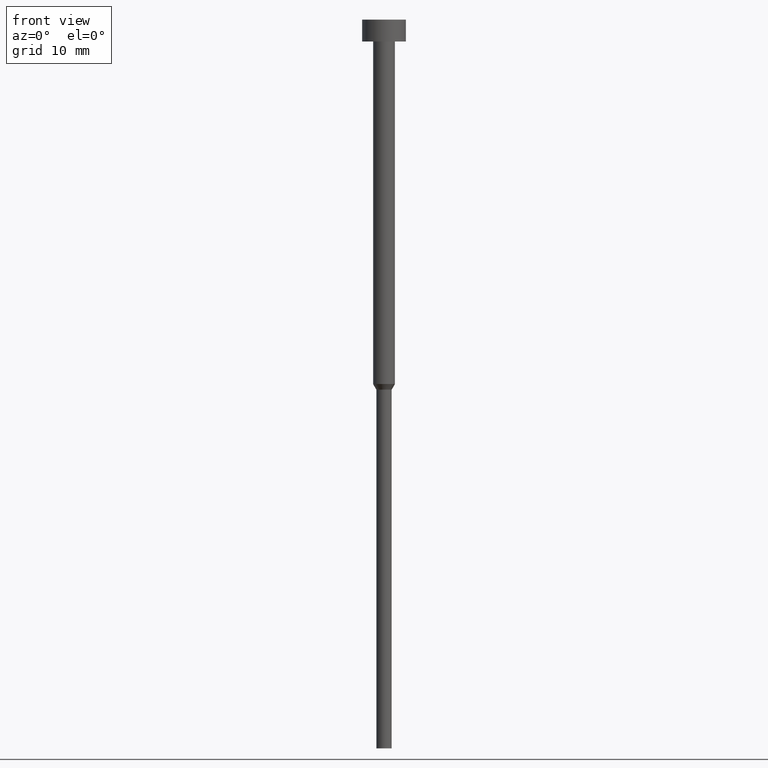
[diagram: clean part render]
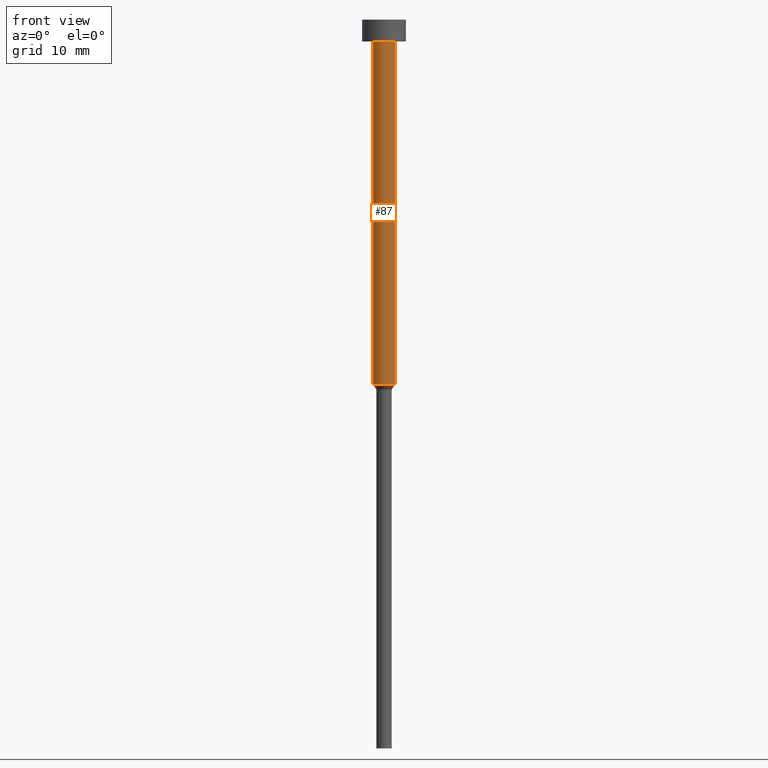
[diagram: same view with one face highlighted and labeled with its STEP entity id]
A machine part, front view. The second image highlights one B-rep face of the part: STEP entity #87.
In plain terms, the highlighted cylindrical surface (edge-blend (fillet) strip) has radius 1.5 mm, axis along (-0, -0, 1).
Its self-contained STEP definition (entity closure, byte-faithful):
#13 = VERTEX_POINT ( 'NONE', #348 ) ;
#14 = CARTESIAN_POINT ( 'NONE',  ( 0.000000000000000000, 0.000000000000000000, -50.00000000000000000 ) ) ;
#38 = DIRECTION ( 'NONE',  ( -0.000000000000000000, -0.000000000000000000, 1.000000000000000000 ) ) ;
#42 = VERTEX_POINT ( 'NONE', #165 ) ;
#44 = AXIS2_PLACEMENT_3D ( 'NONE', #277, #278, #65 ) ;
#45 = CARTESIAN_POINT ( 'NONE',  ( 0.000000000000000000, 0.000000000000000000, 0.000000000000000000 ) ) ;
#65 = DIRECTION ( 'NONE',  ( 1.000000000000000000, 0.000000000000000000, 0.000000000000000000 ) ) ;
#67 = ORIENTED_EDGE ( 'NONE', *, *, #198, .T. ) ;
#68 = AXIS2_PLACEMENT_3D ( 'NONE', #14, #38, #231 ) ;
#79 = DIRECTION ( 'NONE',  ( -0.000000000000000000, -0.000000000000000000, 1.000000000000000000 ) ) ;
#87 = ADVANCED_FACE ( 'NONE', ( #329 ), #111, .T. ) ;
#89 = ORIENTED_EDGE ( 'NONE', *, *, #152, .F. ) ;
#111 = CYLINDRICAL_SURFACE ( 'NONE', #185, 1.500000000000000000 ) ;
#113 = CIRCLE ( 'NONE', #44, 1.500000000000000000 ) ;
#130 = LINE ( 'NONE', #279, #167 ) ;
#147 = VERTEX_POINT ( 'NONE', #175 ) ;
#152 = EDGE_CURVE ( 'NONE', #42, #355, #113, .T. ) ;
#154 = EDGE_LOOP ( 'NONE', ( #183, #67, #257, #89 ) ) ;
#157 = VECTOR ( 'NONE', #79, 1000.000000000000000 ) ;
#165 = CARTESIAN_POINT ( 'NONE',  ( -1.500000000000000000, 1.836970198721029934E-16, -3.000000000000000888 ) ) ;
#166 = CARTESIAN_POINT ( 'NONE',  ( 1.500000000000000000, 0.000000000000000000, 0.000000000000000000 ) ) ;
#167 = VECTOR ( 'NONE', #309, 1000.000000000000000 ) ;
#175 = CARTESIAN_POINT ( 'NONE',  ( 1.500000000000000000, 0.000000000000000000, -50.00000000000000000 ) ) ;
#183 = ORIENTED_EDGE ( 'NONE', *, *, #246, .F. ) ;
#185 = AXIS2_PLACEMENT_3D ( 'NONE', #45, #344, #337 ) ;
#198 = EDGE_CURVE ( 'NONE', #13, #147, #218, .T. ) ;
#207 = LINE ( 'NONE', #166, #157 ) ;
#218 = CIRCLE ( 'NONE', #68, 1.500000000000000000 ) ;
#231 = DIRECTION ( 'NONE',  ( 1.000000000000000000, 0.000000000000000000, 0.000000000000000000 ) ) ;
#246 = EDGE_CURVE ( 'NONE', #13, #42, #130, .T. ) ;
#257 = ORIENTED_EDGE ( 'NONE', *, *, #270, .T. ) ;
#270 = EDGE_CURVE ( 'NONE', #147, #355, #207, .T. ) ;
#277 = CARTESIAN_POINT ( 'NONE',  ( 0.000000000000000000, 0.000000000000000000, -3.000000000000000888 ) ) ;
#278 = DIRECTION ( 'NONE',  ( -0.000000000000000000, -0.000000000000000000, 1.000000000000000000 ) ) ;
#279 = CARTESIAN_POINT ( 'NONE',  ( -1.500000000000000000, 1.836970198721029934E-16, 0.000000000000000000 ) ) ;
#309 = DIRECTION ( 'NONE',  ( -0.000000000000000000, -0.000000000000000000, 1.000000000000000000 ) ) ;
#321 = CARTESIAN_POINT ( 'NONE',  ( 1.500000000000000000, 0.000000000000000000, -3.000000000000000888 ) ) ;
#329 = FACE_OUTER_BOUND ( 'NONE', #154, .T. ) ;
#337 = DIRECTION ( 'NONE',  ( 1.000000000000000000, 0.000000000000000000, 0.000000000000000000 ) ) ;
#344 = DIRECTION ( 'NONE',  ( -0.000000000000000000, -0.000000000000000000, 1.000000000000000000 ) ) ;
#348 = CARTESIAN_POINT ( 'NONE',  ( -1.500000000000000000, 1.836970198721029934E-16, -50.00000000000000000 ) ) ;
#355 = VERTEX_POINT ( 'NONE', #321 ) ;